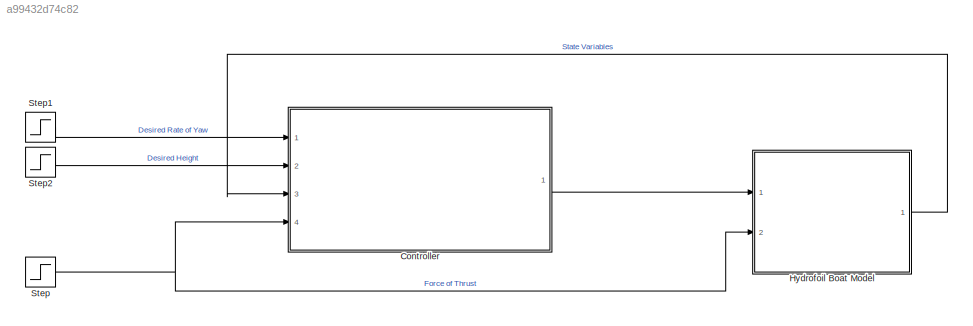
MODEL slx_a99432d74c82
KIND model
CONFIG AbsTol = auto
CONFIG EnableMultiTasking = off
CONFIG FixedStep = auto
CONFIG MaxStep = auto
CONFIG MinStep = auto
CONFIG RelTol = 1e-3
CONFIG SampleTimeConstraint = Unconstrained
CONFIG Solver = VariableStepAuto
CONFIG SolverName = VariableStepAuto
CONFIG StartTime = 0.0
CONFIG StopTime = 250
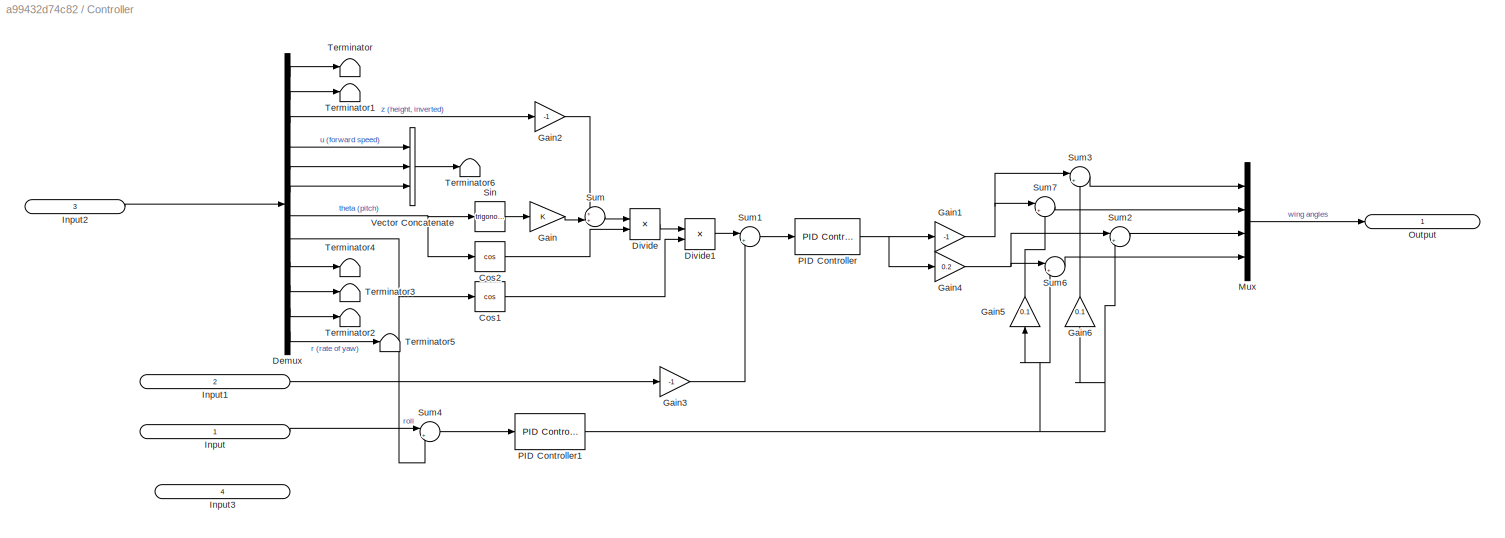
BLOCK [SubSystem] Controller
  Ports = [4, 1]
  RequestExecContextInheritance = off
BLOCK [Trigonometry] Controller/Cos1
  Operator = cos
  Ports = [1, 1]
BLOCK [Trigonometry] Controller/Cos2
  Operator = cos
  Ports = [1, 1]
BLOCK [Demux] Controller/Demux
  DisplayOption = bar
  Outputs = 12
  Ports = [1, 12]
BLOCK [Product] Controller/Divide
  InputSameDT = off
  Inputs = */
  OutDataTypeStr = Inherit: Inherit via internal rule
  Ports = [2, 1]
  RndMeth = Floor
  SaturateOnIntegerOverflow = off
BLOCK [Product] Controller/Divide1
  InputSameDT = off
  Inputs = */
  OutDataTypeStr = Inherit: Inherit via internal rule
  Ports = [2, 1]
  RndMeth = Floor
  SaturateOnIntegerOverflow = off
BLOCK [Gain] Controller/Gain
  OutDataTypeStr = Inherit: Inherit via internal rule
  ParamDataTypeStr = Inherit: Inherit via internal rule
  SaturateOnIntegerOverflow = off
BLOCK [Gain] Controller/Gain1
  Gain = -1
  OutDataTypeStr = Inherit: Inherit via internal rule
  ParamDataTypeStr = Inherit: Inherit via internal rule
  SaturateOnIntegerOverflow = off
BLOCK [Gain] Controller/Gain2
  Gain = -1
  OutDataTypeStr = Inherit: Inherit via internal rule
  ParamDataTypeStr = Inherit: Inherit via internal rule
  SaturateOnIntegerOverflow = off
BLOCK [Gain] Controller/Gain3
  Gain = -1
  OutDataTypeStr = Inherit: Inherit via internal rule
  ParamDataTypeStr = Inherit: Inherit via internal rule
  SaturateOnIntegerOverflow = off
BLOCK [Gain] Controller/Gain4
  Gain = 0.2
  OutDataTypeStr = Inherit: Inherit via internal rule
  ParamDataTypeStr = Inherit: Inherit via internal rule
  SaturateOnIntegerOverflow = off
BLOCK [Gain] Controller/Gain5
  Gain = 0.1
  OutDataTypeStr = Inherit: Inherit via internal rule
  ParamDataTypeStr = Inherit: Inherit via internal rule
  SaturateOnIntegerOverflow = off
BLOCK [Gain] Controller/Gain6
  Gain = 0.1
  OutDataTypeStr = Inherit: Inherit via internal rule
  ParamDataTypeStr = Inherit: Inherit via internal rule
  SaturateOnIntegerOverflow = off
BLOCK [Inport] Controller/Input
  IconDisplay = Signal name
BLOCK [Inport] Controller/Input1
  IconDisplay = Signal name
  Port = 2
BLOCK [Inport] Controller/Input2
  IconDisplay = Signal name
  Port = 3
BLOCK [Inport] Controller/Input3
  IconDisplay = Signal name
  Port = 4
BLOCK [Mux] Controller/Mux
  DisplayOption = bar
  Ports = [4, 1]
BLOCK [Outport] Controller/Output
  IconDisplay = Signal name
BLOCK [Reference] Controller/PID Controller  REF=simulink/Continuous/PID Controller
  Ports = [1, 1]
  SourceBlock = simulink/Continuous/PID Controller
  SourceProductBaseCode = SL
  SourceProductName = Simulink
  SourceType = PID 1dof
BLOCK [Reference] Controller/PID Controller1  REF=simulink/Continuous/PID Controller
  Ports = [1, 1]
  SourceBlock = simulink/Continuous/PID Controller
  SourceProductBaseCode = SL
  SourceProductName = Simulink
  SourceType = PID 1dof
BLOCK [Trigonometry] Controller/Sin
  Ports = [1, 1]
BLOCK [Sum] Controller/Sum
  IconShape = round
  InputSameDT = off
  Inputs = ++|
  OutDataTypeStr = Inherit: Inherit via internal rule
  Ports = [2, 1]
  SaturateOnIntegerOverflow = off
BLOCK [Sum] Controller/Sum1
  IconShape = round
  InputSameDT = off
  Inputs = |+-
  OutDataTypeStr = Inherit: Inherit via internal rule
  Ports = [2, 1]
  SaturateOnIntegerOverflow = off
BLOCK [Sum] Controller/Sum2
  IconShape = round
  InputSameDT = off
  Inputs = |++
  OutDataTypeStr = Inherit: Inherit via internal rule
  Ports = [2, 1]
  SaturateOnIntegerOverflow = off
BLOCK [Sum] Controller/Sum3
  IconShape = round
  InputSameDT = off
  Inputs = |++
  OutDataTypeStr = Inherit: Inherit via internal rule
  Ports = [2, 1]
  SaturateOnIntegerOverflow = off
BLOCK [Sum] Controller/Sum4
  IconShape = round
  InputSameDT = off
  Inputs = |+-
  OutDataTypeStr = Inherit: Inherit via internal rule
  Ports = [2, 1]
  SaturateOnIntegerOverflow = off
BLOCK [Sum] Controller/Sum6
  IconShape = round
  InputSameDT = off
  Inputs = |+-
  OutDataTypeStr = Inherit: Inherit via internal rule
  Ports = [2, 1]
  SaturateOnIntegerOverflow = off
BLOCK [Sum] Controller/Sum7
  IconShape = round
  InputSameDT = off
  Inputs = |+-
  OutDataTypeStr = Inherit: Inherit via internal rule
  Ports = [2, 1]
  SaturateOnIntegerOverflow = off
BLOCK [Terminator] Controller/Terminator
BLOCK [Terminator] Controller/Terminator1
BLOCK [Terminator] Controller/Terminator2
BLOCK [Terminator] Controller/Terminator3
BLOCK [Terminator] Controller/Terminator4
BLOCK [Terminator] Controller/Terminator5
BLOCK [Terminator] Controller/Terminator6
BLOCK [Concatenate] Controller/Vector Concatenate
  NumInputs = 3
  Ports = [3, 1]
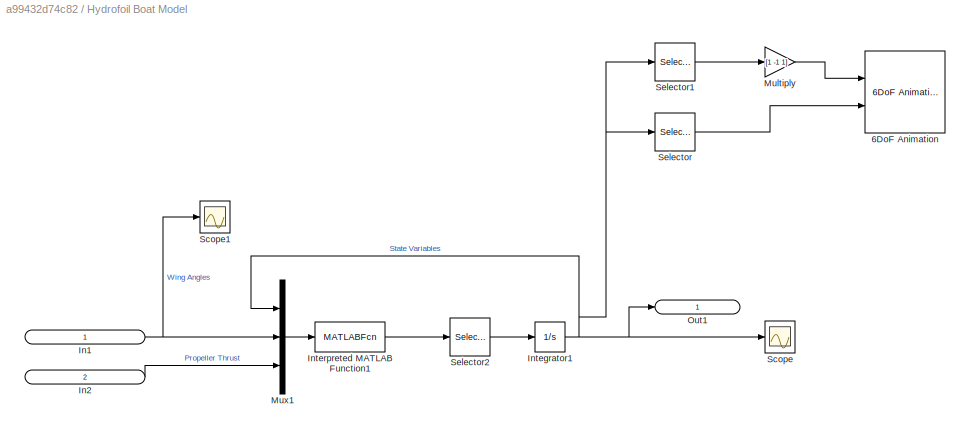
BLOCK [SubSystem] Hydrofoil Boat Model
  Ports = [2, 1]
  RequestExecContextInheritance = off
BLOCK [Reference] Hydrofoil Boat Model/6DoF Animation  REF=aerolibanim/6DoF Animation
  Ports = [2]
  SourceBlock = aerolibanim/6DoF Animation
  SourceProductBaseCode = AE
  SourceProductName = Aerospace Blockset
  SourceType = 6DoF_Animation
BLOCK [Inport] Hydrofoil Boat Model/In1
  IconDisplay = Signal name
BLOCK [Inport] Hydrofoil Boat Model/In2
  IconDisplay = Signal name
  Port = 2
BLOCK [Integrator] Hydrofoil Boat Model/Integrator1
  InitialCondition = x0
  Ports = [1, 1]
BLOCK [MATLABFcn] Hydrofoil Boat Model/Interpreted MATLAB Function1
  MATLABFcn = scalemodelstatefunction(u(1:12),u(13:16),u(17))
  OutputDimensions = 12
  Ports = [1, 1]
BLOCK [Gain] Hydrofoil Boat Model/Multiply
  Gain = [1 -1 1]
  OutDataTypeStr = Inherit: Inherit via internal rule
  ParamDataTypeStr = Inherit: Inherit via internal rule
  SaturateOnIntegerOverflow = off
BLOCK [Mux] Hydrofoil Boat Model/Mux1
  DisplayOption = bar
  Inputs = 3
  Ports = [3, 1]
BLOCK [Outport] Hydrofoil Boat Model/Out1
  IconDisplay = Signal name
BLOCK [Scope] Hydrofoil Boat Model/Scope
  Floating = off
  NumInputPorts = 1
  Ports = [1]
  ScopeSpecificationString = Simulink.scopes.TimeScopeBlockCfg('CurrentConfiguration', extmgr.ConfigurationSet(extmgr.Configuration('Core','General UI',true),extmgr.Configuration('Core','Source UI',true),extmgr.Configuration('Sources','WiredSimulink',true,'DataLoggingVariableName','ScopeData2'),extmgr.Configuration('Visuals','Time Domain',true,'SerializedDisplays',{struct('MinYLimReal','-3.75406','MaxYLimReal','4.16349','YLab...<+2069ch>
BLOCK [Scope] Hydrofoil Boat Model/Scope1
  Floating = off
  NumInputPorts = 1
  Ports = [1]
  ScopeSpecificationString = Simulink.scopes.TimeScopeBlockCfg('CurrentConfiguration', extmgr.ConfigurationSet(extmgr.Configuration('Core','General UI',true),extmgr.Configuration('Core','Source UI',true),extmgr.Configuration('Sources','WiredSimulink',true,'DataLoggingVariableName','ScopeData1'),extmgr.Configuration('Visuals','Time Domain',true,'SerializedDisplays',{struct('MinYLimReal','-2.28457','MaxYLimReal','3.04883','YLab...<+2044ch>
BLOCK [Selector] Hydrofoil Boat Model/Selector
  IndexOptions = Index vector (dialog)
  Indices = [8 7 9]
  InputPortWidth = 12
  OutputSizes = 1
  Ports = [1, 1]
BLOCK [Selector] Hydrofoil Boat Model/Selector1
  IndexOptions = Index vector (dialog)
  Indices = [1 2 3]
  InputPortWidth = 12
  OutputSizes = 1
  Ports = [1, 1]
BLOCK [Selector] Hydrofoil Boat Model/Selector2
  IndexOptions = Index vector (dialog)
  Indices = [1 2 3 4 5 6 7 8 9 10 11 12]
  InputPortWidth = 12
  OutputSizes = 1
  Ports = [1, 1]
BLOCK [Step] Step
  After = 100
  SampleTime = 0
  Time = 30
BLOCK [Step] Step1
  After = 0.5
  SampleTime = 0
  Time = 50
BLOCK [Step] Step2
  After = -0.5
  SampleTime = 0
  Time = 0
LINE Controller/Cos1:1 -> Controller/Divide1:2
LINE Controller/Cos2:1 -> Controller/Divide:2
LINE Controller/Demux:1 -> Controller/Terminator:1
LINE Controller/Demux:10 -> Controller/Terminator3:1
LINE Controller/Demux:11 -> Controller/Terminator2:1
LINE Controller/Demux:12 -> Controller/Terminator5:1
LINE Controller/Demux:2 -> Controller/Terminator1:1
LINE Controller/Demux:3 -> Controller/Gain2:1
LINE Controller/Demux:4 -> Controller/Vector Concatenate:1
LINE Controller/Demux:5 -> Controller/Vector Concatenate:2
LINE Controller/Demux:6 -> Controller/Vector Concatenate:3
NET Controller/Demux:7 -> Controller/Cos2:1, Controller/Sin:1
NET Controller/Demux:8 -> Controller/Cos1:1, Controller/Sum4:2
LINE Controller/Demux:9 -> Controller/Terminator4:1
LINE Controller/Divide1:1 -> Controller/Sum1:1
LINE Controller/Divide:1 -> Controller/Divide1:1
NET Controller/Gain1:1 -> Controller/Sum3:1, Controller/Sum7:1
LINE Controller/Gain2:1 -> Controller/Sum:1
LINE Controller/Gain3:1 -> Controller/Sum1:2
NET Controller/Gain4:1 -> Controller/Sum2:1, Controller/Sum6:1
LINE Controller/Gain5:1 -> Controller/Sum7:2
LINE Controller/Gain6:1 -> Controller/Sum3:2
LINE Controller/Gain:1 -> Controller/Sum:2
LINE Controller/Input1:1 -> Controller/Gain3:1
LINE Controller/Input2:1 -> Controller/Demux:1
LINE Controller/Input:1 -> Controller/Sum4:1
LINE Controller/Mux:1 -> Controller/Output:1
NET Controller/PID Controller1:1 -> Controller/Gain5:1, Controller/Gain6:1, Controller/Sum2:2, Controller/Sum6:2
NET Controller/PID Controller:1 -> Controller/Gain1:1, Controller/Gain4:1
LINE Controller/Sin:1 -> Controller/Gain:1
LINE Controller/Sum1:1 -> Controller/PID Controller:1
LINE Controller/Sum2:1 -> Controller/Mux:3
LINE Controller/Sum3:1 -> Controller/Mux:1
LINE Controller/Sum4:1 -> Controller/PID Controller1:1
LINE Controller/Sum6:1 -> Controller/Mux:4
LINE Controller/Sum7:1 -> Controller/Mux:2
LINE Controller/Sum:1 -> Controller/Divide:1
LINE Controller/Vector Concatenate:1 -> Controller/Terminator6:1
LINE Controller:1 -> Hydrofoil Boat Model:1
NET Hydrofoil Boat Model/In1:1 -> Hydrofoil Boat Model/Mux1:2, Hydrofoil Boat Model/Scope1:1
LINE Hydrofoil Boat Model/In2:1 -> Hydrofoil Boat Model/Mux1:3
NET Hydrofoil Boat Model/Integrator1:1 -> Hydrofoil Boat Model/Mux1:1, Hydrofoil Boat Model/Out1:1, Hydrofoil Boat Model/Scope:1, Hydrofoil Boat Model/Selector1:1, Hydrofoil Boat Model/Selector:1
LINE Hydrofoil Boat Model/Interpreted MATLAB Function1:1 -> Hydrofoil Boat Model/Selector2:1
LINE Hydrofoil Boat Model/Multiply:1 -> Hydrofoil Boat Model/6DoF Animation:1
LINE Hydrofoil Boat Model/Mux1:1 -> Hydrofoil Boat Model/Interpreted MATLAB Function1:1
LINE Hydrofoil Boat Model/Selector1:1 -> Hydrofoil Boat Model/Multiply:1
LINE Hydrofoil Boat Model/Selector2:1 -> Hydrofoil Boat Model/Integrator1:1
LINE Hydrofoil Boat Model/Selector:1 -> Hydrofoil Boat Model/6DoF Animation:2
LINE Hydrofoil Boat Model:1 -> Controller:3
LINE Step1:1 -> Controller:1
LINE Step2:1 -> Controller:2
NET Step:1 -> Controller:4, Hydrofoil Boat Model:2
note: NET lines group one-source signal fan-out (src -> all destinations, sorted); 1:1 wires keep LINE
